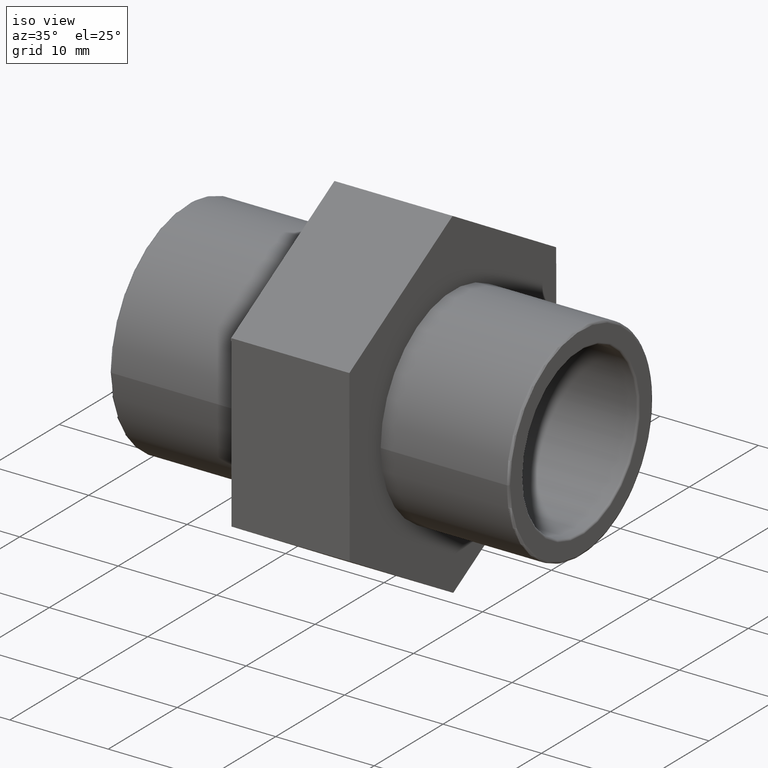
[diagram: clean part render]
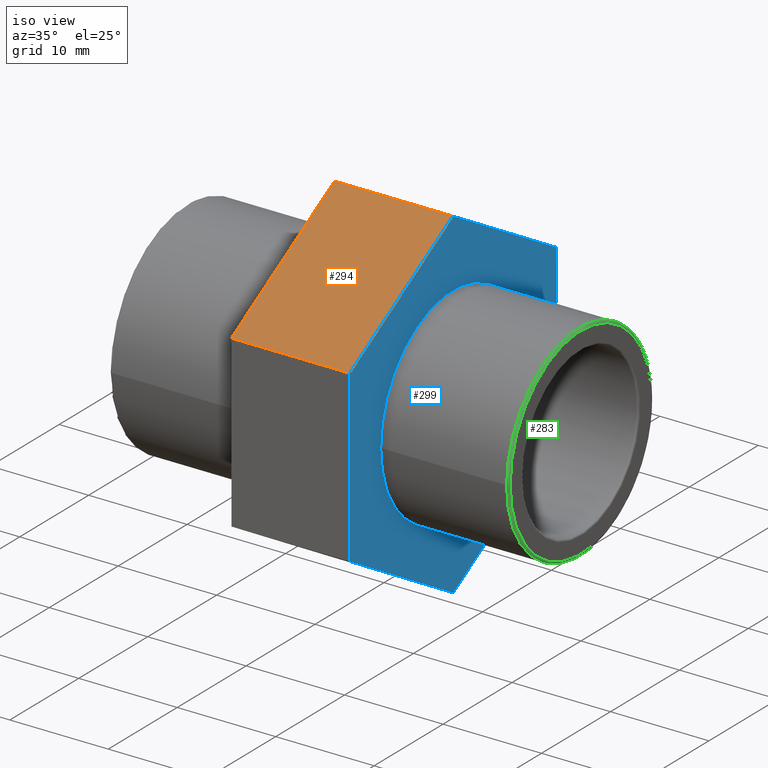
[diagram: same view with three faces highlighted in distinct colors, each labeled with its STEP entity id]
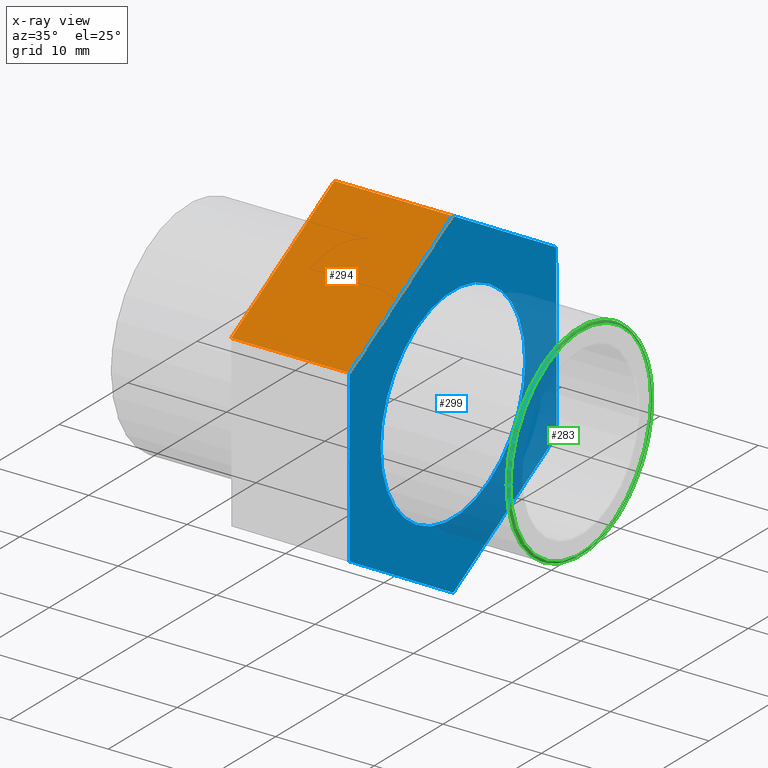
[diagram: x-ray of the same camera — body ghosted, the three highlighted faces saturated]
A machine part, iso view with three faces highlighted in distinct colors.
The next image is the same camera in x-ray (body ghosted, the three faces saturated) — at least one of them is partly hidden behind the body in this view.
Their STEP definitions:

[orange] entity #294 — the highlighted planar face has unit normal (0, -0.5026, 0.8645).
#18=LINE('',#471,#36);
#26=LINE('',#489,#44);
#29=LINE('',#494,#47);
#30=LINE('',#495,#48);
#36=VECTOR('',#389,12.);
#44=VECTOR('',#403,12.);
#47=VECTOR('',#408,17.3205080756889);
#48=VECTOR('',#409,17.3205080756889);
#62=PLANE('',#329);
#97=FACE_OUTER_BOUND('',#128,.T.);
#128=EDGE_LOOP('',(#248,#249,#250,#251));
#166=VERTEX_POINT('',#464);
#169=VERTEX_POINT('',#469);
#175=VERTEX_POINT('',#486);
#176=VERTEX_POINT('',#488);
#195=EDGE_CURVE('',#169,#166,#18,.T.);
#203=EDGE_CURVE('',#176,#175,#26,.T.);
#206=EDGE_CURVE('',#175,#166,#29,.T.);
#207=EDGE_CURVE('',#169,#176,#30,.T.);
#248=ORIENTED_EDGE('',*,*,#206,.T.);
#249=ORIENTED_EDGE('',*,*,#195,.F.);
#250=ORIENTED_EDGE('',*,*,#207,.T.);
#251=ORIENTED_EDGE('',*,*,#203,.T.);
#294=ADVANCED_FACE('',(#97),#62,.T.);
#329=AXIS2_PLACEMENT_3D('',#493,#406,#407);
#389=DIRECTION('',(-1.,-1.23358113847239E-16,0.));
#403=DIRECTION('',(-1.,-1.23358113847239E-16,0.));
#406=DIRECTION('center_axis',(6.19953516125939E-17,-0.502564036358127,0.864539987137337));
#407=DIRECTION('ref_axis',(-1.77635683940025E-16,0.864539987137337,0.502564036358127));
#408=DIRECTION('',(1.58813419197395E-16,-0.864539987137337,-0.502564036358127));
#409=DIRECTION('',(-1.58813419197395E-16,0.864539987137337,0.502564036358127));
#464=CARTESIAN_POINT('',(-4.99999999999999,-15.0255964598561,8.61576758191424));
#469=CARTESIAN_POINT('',(7.00000000000001,-15.0255964598561,8.61576758191424));
#471=CARTESIAN_POINT('',(7.00000000000001,-15.0255964598561,8.61576758191424));
#486=CARTESIAN_POINT('',(-5.,-0.0513246308878628,17.320432032206));
#488=CARTESIAN_POINT('',(7.00000000000001,-0.0513246308878614,17.320432032206));
#489=CARTESIAN_POINT('',(7.00000000000001,-0.0513246308878614,17.320432032206));
#493=CARTESIAN_POINT('Origin',(7.00000000000001,-15.0255964598561,8.61576758191424));
#494=CARTESIAN_POINT('',(-4.99999999999999,-11.282028502614,10.7919336944872));
#495=CARTESIAN_POINT('',(7.00000000000001,-15.0255964598561,8.61576758191424));

[blue] entity #299 — the highlighted planar face has unit normal (1, 0, 0).
#17=LINE('',#470,#35);
#21=LINE('',#477,#39);
#24=LINE('',#483,#42);
#27=LINE('',#491,#45);
#30=LINE('',#495,#48);
#32=LINE('',#498,#50);
#35=VECTOR('',#388,17.3205080756889);
#39=VECTOR('',#394,17.3205080756889);
#42=VECTOR('',#399,17.3205080756889);
#45=VECTOR('',#404,17.3205080756888);
#48=VECTOR('',#409,17.3205080756889);
#50=VECTOR('',#413,17.3205080756888);
#66=PLANE('',#336);
#81=FACE_BOUND('',#137,.T.);
#102=FACE_OUTER_BOUND('',#136,.T.);
#136=EDGE_LOOP('',(#262,#263,#264,#265,#266,#267));
#137=EDGE_LOOP('',(#268));
#145=CIRCLE('',#313,10.4775);
#159=VERTEX_POINT('',#444);
#168=VERTEX_POINT('',#467);
#169=VERTEX_POINT('',#469);
#171=VERTEX_POINT('',#475);
#173=VERTEX_POINT('',#481);
#176=VERTEX_POINT('',#488);
#177=VERTEX_POINT('',#490);
#185=EDGE_CURVE('',#159,#159,#145,.T.);
#194=EDGE_CURVE('',#168,#169,#17,.T.);
#198=EDGE_CURVE('',#171,#168,#21,.T.);
#201=EDGE_CURVE('',#173,#171,#24,.T.);
#204=EDGE_CURVE('',#176,#177,#27,.T.);
#207=EDGE_CURVE('',#169,#176,#30,.T.);
#209=EDGE_CURVE('',#177,#173,#32,.T.);
#262=ORIENTED_EDGE('',*,*,#207,.F.);
#263=ORIENTED_EDGE('',*,*,#194,.F.);
#264=ORIENTED_EDGE('',*,*,#198,.F.);
#265=ORIENTED_EDGE('',*,*,#201,.F.);
#266=ORIENTED_EDGE('',*,*,#209,.F.);
#267=ORIENTED_EDGE('',*,*,#204,.F.);
#268=ORIENTED_EDGE('',*,*,#185,.T.);
#299=ADVANCED_FACE('',(#102,#81),#66,.T.);
#313=AXIS2_PLACEMENT_3D('',#445,#360,#361);
#336=AXIS2_PLACEMENT_3D('',#506,#424,#425);
#360=DIRECTION('center_axis',(-1.,-1.83697019872103E-16,0.));
#361=DIRECTION('ref_axis',(0.,0.,1.));
#388=DIRECTION('',(5.44336326564007E-19,-0.00296322894591864,0.999995609627469));
#394=DIRECTION('',(1.59357755523959E-16,-0.867503216083254,0.49743157326934));
#399=DIRECTION('',(1.58813419197395E-16,-0.864539987137334,-0.502564036358132));
#404=DIRECTION('',(-1.59357755523959E-16,0.867503216083253,-0.497431573269341));
#409=DIRECTION('',(-1.58813419197395E-16,0.864539987137337,0.502564036358127));
#413=DIRECTION('',(-5.44336326564222E-19,0.00296322894591981,-0.999995609627469));
#424=DIRECTION('center_axis',(1.,1.83697019872103E-16,0.));
#425=DIRECTION('ref_axis',(0.,0.,-1.));
#444=CARTESIAN_POINT('',(7.00000000000001,-10.4775,0.));
#445=CARTESIAN_POINT('Origin',(7.00000000000001,4.95981953654678E-15,0.));
#467=CARTESIAN_POINT('',(7.00000000000001,-14.9742718289682,-8.7046644502918));
#469=CARTESIAN_POINT('',(7.00000000000001,-15.0255964598561,8.61576758191424));
#470=CARTESIAN_POINT('',(7.00000000000001,-14.9742718289682,-8.7046644502918));
#475=CARTESIAN_POINT('',(7.00000000000001,0.0513246308879247,-17.320432032206));
#477=CARTESIAN_POINT('',(7.00000000000001,0.0513246308879247,-17.320432032206));
#481=CARTESIAN_POINT('',(7.00000000000001,15.0255964598561,-8.61576758191421));
#483=CARTESIAN_POINT('',(7.00000000000001,15.0255964598561,-8.61576758191421));
#488=CARTESIAN_POINT('',(7.00000000000001,-0.0513246308878614,17.320432032206));
#490=CARTESIAN_POINT('',(7.00000000000001,14.9742718289682,8.70466445029174));
#491=CARTESIAN_POINT('',(7.00000000000001,-0.0513246308878614,17.320432032206));
#495=CARTESIAN_POINT('',(7.00000000000001,-15.0255964598561,8.61576758191424));
#498=CARTESIAN_POINT('',(7.00000000000001,14.9742718289682,8.70466445029174));
#506=CARTESIAN_POINT('Origin',(7.00000000000001,-15.,0.));

[green] entity #283 — the highlighted toroidal blend (fillet) surface has major radius 10.268 mm and minor (blend) radius 0.2095 mm.
#71=FACE_BOUND('',#111,.T.);
#86=FACE_OUTER_BOUND('',#110,.T.);
#110=EDGE_LOOP('',(#218));
#111=EDGE_LOOP('',(#219));
#142=CIRCLE('',#307,10.26795);
#144=CIRCLE('',#311,10.4775);
#156=VERTEX_POINT('',#435);
#158=VERTEX_POINT('',#441);
#182=EDGE_CURVE('',#156,#156,#142,.T.);
#184=EDGE_CURVE('',#158,#158,#144,.T.);
#218=ORIENTED_EDGE('',*,*,#182,.T.);
#219=ORIENTED_EDGE('',*,*,#184,.T.);
#277=TOROIDAL_SURFACE('',#310,10.26795,0.20955);
#283=ADVANCED_FACE('',(#86,#71),#277,.T.);
#307=AXIS2_PLACEMENT_3D('',#436,#348,#349);
#310=AXIS2_PLACEMENT_3D('',#440,#354,#355);
#311=AXIS2_PLACEMENT_3D('',#442,#356,#357);
#348=DIRECTION('center_axis',(-1.,-1.83697019872103E-16,0.));
#349=DIRECTION('ref_axis',(-1.83697019872103E-16,1.,6.12323399573677E-17));
#354=DIRECTION('center_axis',(-1.,-1.83697019872103E-16,0.));
#355=DIRECTION('ref_axis',(0.,0.,1.));
#356=DIRECTION('center_axis',(1.,1.83697019872103E-16,0.));
#357=DIRECTION('ref_axis',(-1.82123199577617E-16,1.,6.12323399573677E-17));
#435=CARTESIAN_POINT('',(20.,-10.26795,6.28730605065253E-16));
#436=CARTESIAN_POINT('Origin',(20.,7.34788079488412E-15,0.));
#440=CARTESIAN_POINT('Origin',(19.79045,7.30938708436992E-15,0.));
#441=CARTESIAN_POINT('',(19.79045,-10.4775,-1.92468552570996E-15));
#442=CARTESIAN_POINT('Origin',(19.79045,7.30938708436992E-15,0.));